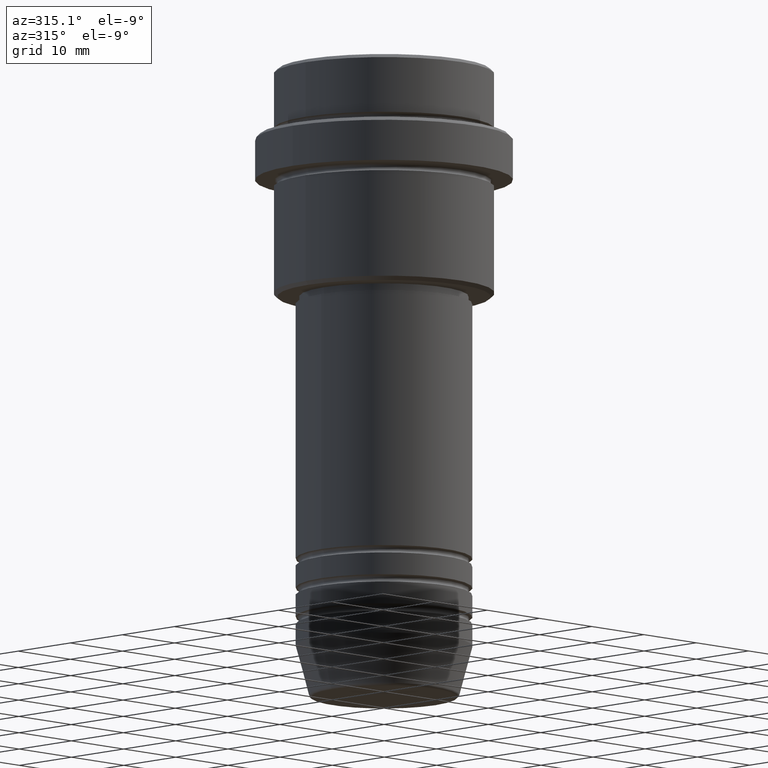
[diagram: clean part render]
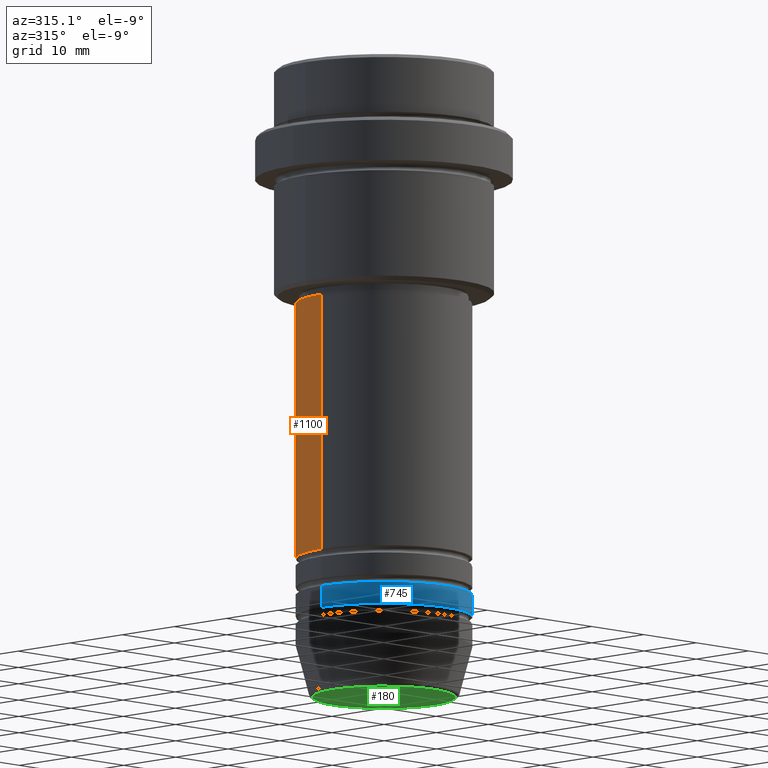
[diagram: same view with three faces highlighted in distinct colors, each labeled with its STEP entity id]
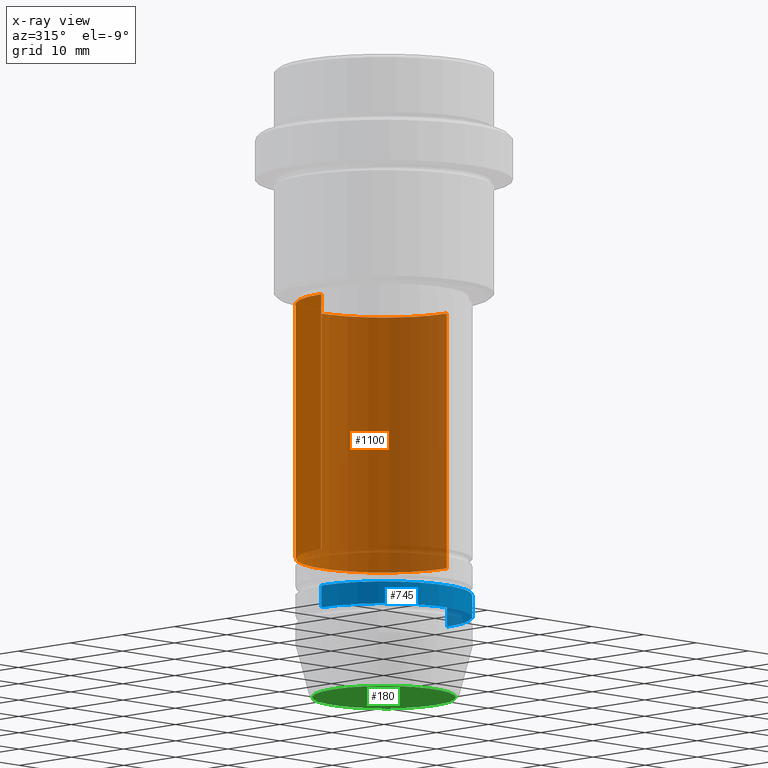
[diagram: x-ray of the same camera — body ghosted, the three highlighted faces saturated]
A machine part, auxiliary view with three faces highlighted in distinct colors.
The next image is the same camera in x-ray (body ghosted, the three faces saturated) — at least one of them is partly hidden behind the body in this view.
Their STEP definitions:

[orange] entity #1100 — the highlighted cylindrical surface (partial cylindrical patch) has radius 12 mm, axis along (-0, -0, 1).
#32 = DIRECTION ( 'NONE',  ( -0.000000000000000000, -0.000000000000000000, 1.000000000000000000 ) ) ;
#45 = DIRECTION ( 'NONE',  ( -0.000000000000000000, -0.000000000000000000, 1.000000000000000000 ) ) ;
#117 = EDGE_CURVE ( 'NONE', #732, #807, #1172, .T. ) ;
#194 = CARTESIAN_POINT ( 'NONE',  ( -11.99999999999999822, 1.469576158976823750E-15, -32.00000000000000000 ) ) ;
#239 = LINE ( 'NONE', #571, #864 ) ;
#271 = ORIENTED_EDGE ( 'NONE', *, *, #935, .T. ) ;
#285 = ORIENTED_EDGE ( 'NONE', *, *, #117, .T. ) ;
#351 = DIRECTION ( 'NONE',  ( 1.000000000000000000, 0.000000000000000000, 0.000000000000000000 ) ) ;
#379 = CARTESIAN_POINT ( 'NONE',  ( 0.000000000000000000, 0.000000000000000000, -66.99999999999988631 ) ) ;
#392 = DIRECTION ( 'NONE',  ( 1.000000000000000000, 0.000000000000000000, 0.000000000000000000 ) ) ;
#460 = CARTESIAN_POINT ( 'NONE',  ( 11.99999999999999822, 0.000000000000000000, -32.00000000000000000 ) ) ;
#469 = CARTESIAN_POINT ( 'NONE',  ( 12.00000000000000000, 0.000000000000000000, 0.000000000000000000 ) ) ;
#508 = AXIS2_PLACEMENT_3D ( 'NONE', #1324, #32, #351 ) ;
#566 = EDGE_CURVE ( 'NONE', #732, #1375, #589, .T. ) ;
#571 = CARTESIAN_POINT ( 'NONE',  ( -12.00000000000000000, 1.469576158976823947E-15, 0.000000000000000000 ) ) ;
#589 = LINE ( 'NONE', #469, #834 ) ;
#690 = DIRECTION ( 'NONE',  ( -0.000000000000000000, -0.000000000000000000, 1.000000000000000000 ) ) ;
#732 = VERTEX_POINT ( 'NONE', #1179 ) ;
#793 = EDGE_LOOP ( 'NONE', ( #285, #271, #1200, #940 ) ) ;
#807 = VERTEX_POINT ( 'NONE', #1406 ) ;
#811 = AXIS2_PLACEMENT_3D ( 'NONE', #379, #45, #392 ) ;
#834 = VECTOR ( 'NONE', #690, 1000.000000000000000 ) ;
#864 = VECTOR ( 'NONE', #1344, 1000.000000000000000 ) ;
#921 = DIRECTION ( 'NONE',  ( 1.000000000000000000, 0.000000000000000000, 0.000000000000000000 ) ) ;
#927 = CIRCLE ( 'NONE', #508, 11.99999999999999822 ) ;
#935 = EDGE_CURVE ( 'NONE', #807, #1233, #239, .T. ) ;
#940 = ORIENTED_EDGE ( 'NONE', *, *, #566, .F. ) ;
#968 = AXIS2_PLACEMENT_3D ( 'NONE', #1144, #1138, #921 ) ;
#974 = EDGE_CURVE ( 'NONE', #1375, #1233, #927, .T. ) ;
#1100 = ADVANCED_FACE ( 'NONE', ( #1258 ), #1265, .T. ) ;
#1138 = DIRECTION ( 'NONE',  ( -0.000000000000000000, -0.000000000000000000, 1.000000000000000000 ) ) ;
#1144 = CARTESIAN_POINT ( 'NONE',  ( 0.000000000000000000, 0.000000000000000000, 0.000000000000000000 ) ) ;
#1172 = CIRCLE ( 'NONE', #811, 12.00000000000000000 ) ;
#1179 = CARTESIAN_POINT ( 'NONE',  ( 12.00000000000000000, 0.000000000000000000, -66.99999999999988631 ) ) ;
#1200 = ORIENTED_EDGE ( 'NONE', *, *, #974, .F. ) ;
#1233 = VERTEX_POINT ( 'NONE', #194 ) ;
#1258 = FACE_OUTER_BOUND ( 'NONE', #793, .T. ) ;
#1265 = CYLINDRICAL_SURFACE ( 'NONE', #968, 12.00000000000000000 ) ;
#1324 = CARTESIAN_POINT ( 'NONE',  ( 0.000000000000000000, 0.000000000000000000, -32.00000000000000000 ) ) ;
#1344 = DIRECTION ( 'NONE',  ( -0.000000000000000000, -0.000000000000000000, 1.000000000000000000 ) ) ;
#1375 = VERTEX_POINT ( 'NONE', #460 ) ;
#1406 = CARTESIAN_POINT ( 'NONE',  ( -12.00000000000000000, 1.469576158976823947E-15, -66.99999999999988631 ) ) ;

[blue] entity #745 — the highlighted cylindrical surface (partial cylindrical patch) has radius 12 mm, axis along (-0, -0, 1).
#10 = EDGE_CURVE ( 'NONE', #896, #114, #1381, .T. ) ;
#18 = CARTESIAN_POINT ( 'NONE',  ( 12.00000000000000000, 0.000000000000000000, -74.99999999999990052 ) ) ;
#81 = DIRECTION ( 'NONE',  ( 1.000000000000000000, 0.000000000000000000, 0.000000000000000000 ) ) ;
#93 = CARTESIAN_POINT ( 'NONE',  ( 0.000000000000000000, 0.000000000000000000, -74.99999999999990052 ) ) ;
#101 = FACE_OUTER_BOUND ( 'NONE', #1243, .T. ) ;
#114 = VERTEX_POINT ( 'NONE', #137 ) ;
#126 = ORIENTED_EDGE ( 'NONE', *, *, #665, .F. ) ;
#137 = CARTESIAN_POINT ( 'NONE',  ( 12.00000000000000000, 0.000000000000000000, -71.99999999999990052 ) ) ;
#160 = CIRCLE ( 'NONE', #250, 12.00000000000000000 ) ;
#174 = DIRECTION ( 'NONE',  ( -0.000000000000000000, -0.000000000000000000, 1.000000000000000000 ) ) ;
#201 = AXIS2_PLACEMENT_3D ( 'NONE', #439, #1415, #1079 ) ;
#206 = ORIENTED_EDGE ( 'NONE', *, *, #1209, .F. ) ;
#236 = ORIENTED_EDGE ( 'NONE', *, *, #10, .T. ) ;
#250 = AXIS2_PLACEMENT_3D ( 'NONE', #93, #559, #545 ) ;
#266 = AXIS2_PLACEMENT_3D ( 'NONE', #1045, #1050, #81 ) ;
#358 = CARTESIAN_POINT ( 'NONE',  ( -12.00000000000000000, 1.469576158976823947E-15, -74.99999999999990052 ) ) ;
#382 = CARTESIAN_POINT ( 'NONE',  ( 12.00000000000000000, 0.000000000000000000, 0.000000000000000000 ) ) ;
#439 = CARTESIAN_POINT ( 'NONE',  ( 0.000000000000000000, 0.000000000000000000, 0.000000000000000000 ) ) ;
#535 = CARTESIAN_POINT ( 'NONE',  ( -12.00000000000000000, 1.469576158976823947E-15, 0.000000000000000000 ) ) ;
#545 = DIRECTION ( 'NONE',  ( 1.000000000000000000, 0.000000000000000000, 0.000000000000000000 ) ) ;
#559 = DIRECTION ( 'NONE',  ( -0.000000000000000000, -0.000000000000000000, 1.000000000000000000 ) ) ;
#561 = CYLINDRICAL_SURFACE ( 'NONE', #201, 12.00000000000000000 ) ;
#665 = EDGE_CURVE ( 'NONE', #729, #114, #837, .T. ) ;
#714 = VECTOR ( 'NONE', #174, 1000.000000000000000 ) ;
#729 = VERTEX_POINT ( 'NONE', #765 ) ;
#745 = ADVANCED_FACE ( 'NONE', ( #101 ), #561, .T. ) ;
#765 = CARTESIAN_POINT ( 'NONE',  ( -12.00000000000000000, 1.469576158976823947E-15, -71.99999999999990052 ) ) ;
#837 = CIRCLE ( 'NONE', #266, 12.00000000000000000 ) ;
#873 = DIRECTION ( 'NONE',  ( -0.000000000000000000, -0.000000000000000000, 1.000000000000000000 ) ) ;
#896 = VERTEX_POINT ( 'NONE', #18 ) ;
#943 = VERTEX_POINT ( 'NONE', #358 ) ;
#1033 = ORIENTED_EDGE ( 'NONE', *, *, #1285, .T. ) ;
#1045 = CARTESIAN_POINT ( 'NONE',  ( 0.000000000000000000, 0.000000000000000000, -71.99999999999990052 ) ) ;
#1050 = DIRECTION ( 'NONE',  ( -0.000000000000000000, -0.000000000000000000, 1.000000000000000000 ) ) ;
#1076 = LINE ( 'NONE', #535, #1108 ) ;
#1079 = DIRECTION ( 'NONE',  ( 1.000000000000000000, 0.000000000000000000, 0.000000000000000000 ) ) ;
#1108 = VECTOR ( 'NONE', #873, 1000.000000000000000 ) ;
#1209 = EDGE_CURVE ( 'NONE', #943, #729, #1076, .T. ) ;
#1243 = EDGE_LOOP ( 'NONE', ( #206, #1033, #236, #126 ) ) ;
#1285 = EDGE_CURVE ( 'NONE', #943, #896, #160, .T. ) ;
#1381 = LINE ( 'NONE', #382, #714 ) ;
#1415 = DIRECTION ( 'NONE',  ( -0.000000000000000000, -0.000000000000000000, 1.000000000000000000 ) ) ;

[green] entity #180 — the highlighted planar face has unit normal (0, -0, 1).
#21 = AXIS2_PLACEMENT_3D ( 'NONE', #858, #303, #210 ) ;
#31 = CARTESIAN_POINT ( 'NONE',  ( 0.000000000000000000, 0.000000000000000000, -86.00000000000000000 ) ) ;
#116 = DIRECTION ( 'NONE',  ( 1.000000000000000000, 0.000000000000000000, 0.000000000000000000 ) ) ;
#135 = CIRCLE ( 'NONE', #21, 9.740692158992658278 ) ;
#180 = ADVANCED_FACE ( 'NONE', ( #495 ), #804, .F. ) ;
#210 = DIRECTION ( 'NONE',  ( 1.000000000000000000, 0.000000000000000000, 0.000000000000000000 ) ) ;
#225 = AXIS2_PLACEMENT_3D ( 'NONE', #31, #578, #116 ) ;
#230 = ORIENTED_EDGE ( 'NONE', *, *, #1376, .T. ) ;
#303 = DIRECTION ( 'NONE',  ( 0.000000000000000000, 0.000000000000000000, -1.000000000000000000 ) ) ;
#338 = AXIS2_PLACEMENT_3D ( 'NONE', #708, #588, #1360 ) ;
#495 = FACE_OUTER_BOUND ( 'NONE', #971, .T. ) ;
#578 = DIRECTION ( 'NONE',  ( 0.000000000000000000, 0.000000000000000000, -1.000000000000000000 ) ) ;
#588 = DIRECTION ( 'NONE',  ( 0.000000000000000000, -0.000000000000000000, 1.000000000000000000 ) ) ;
#680 = CARTESIAN_POINT ( 'NONE',  ( 9.740692158992658278, 0.000000000000000000, -86.00000000000000000 ) ) ;
#707 = ORIENTED_EDGE ( 'NONE', *, *, #1328, .T. ) ;
#708 = CARTESIAN_POINT ( 'NONE',  ( 0.000000000000000000, 0.000000000000000000, -86.00000000000000000 ) ) ;
#804 = PLANE ( 'NONE',  #338 ) ;
#858 = CARTESIAN_POINT ( 'NONE',  ( 0.000000000000000000, 0.000000000000000000, -86.00000000000000000 ) ) ;
#959 = VERTEX_POINT ( 'NONE', #998 ) ;
#971 = EDGE_LOOP ( 'NONE', ( #230, #707 ) ) ;
#998 = CARTESIAN_POINT ( 'NONE',  ( -9.740692158992658278, 1.222463696683474604E-15, -86.00000000000000000 ) ) ;
#1275 = CIRCLE ( 'NONE', #225, 9.740692158992658278 ) ;
#1328 = EDGE_CURVE ( 'NONE', #959, #1357, #135, .T. ) ;
#1357 = VERTEX_POINT ( 'NONE', #680 ) ;
#1360 = DIRECTION ( 'NONE',  ( 1.000000000000000000, 0.000000000000000000, 0.000000000000000000 ) ) ;
#1376 = EDGE_CURVE ( 'NONE', #1357, #959, #1275, .T. ) ;